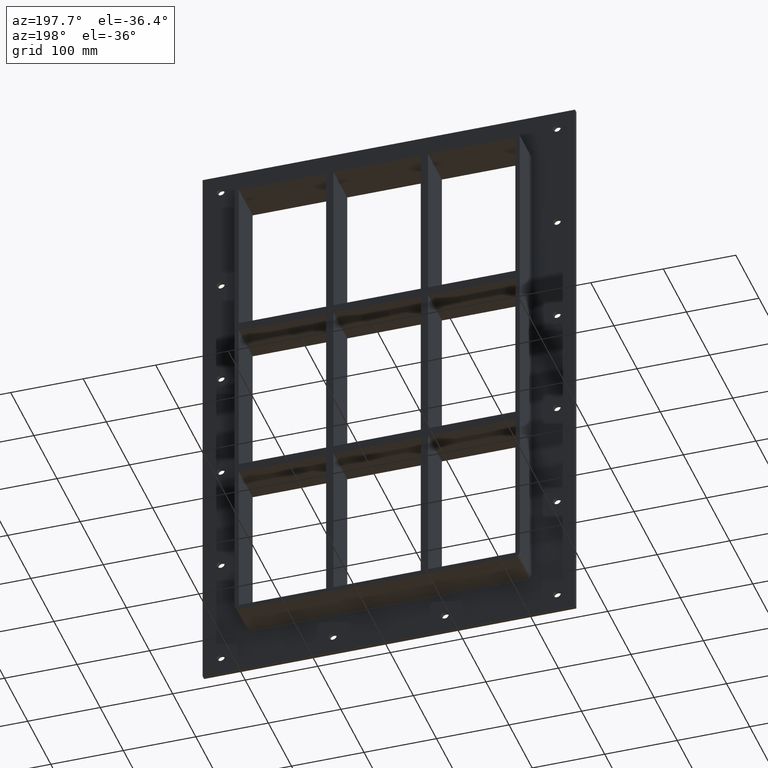
[diagram: clean part render]
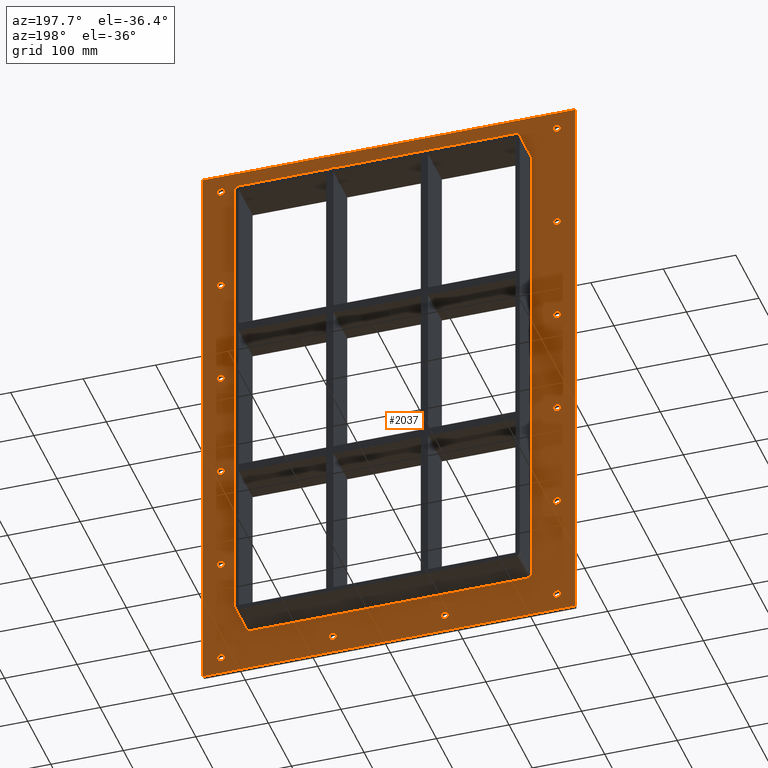
[diagram: same view with one face highlighted and labeled with its STEP entity id]
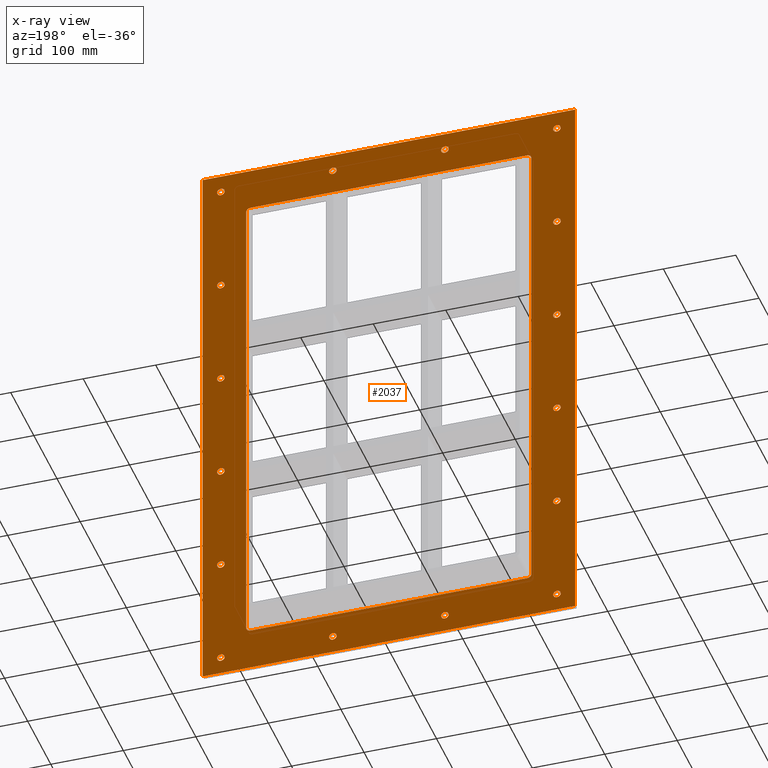
[diagram: x-ray of the same camera — body ghosted, the highlighted face saturated]
A machine part, auxiliary view. The second image highlights one B-rep face of the part: STEP entity #2037.
The next image is the same camera in x-ray: the body ghosted, the highlighted face saturated — about 0% of this face is hidden behind the body in this view.
In plain terms, the highlighted planar face has unit normal (0, 1, 0).
Its self-contained STEP definition (entity closure, byte-faithful):
#73=CARTESIAN_POINT('',(-237.0000000000002,5.999999999999943,-380.00000000000011));
#74=VERTEX_POINT('',#73);
#75=CARTESIAN_POINT('',(-231.75000000000023,5.999999999999943,-380.00000000000011));
#76=DIRECTION('',(0.0,-1.0,0.0));
#77=DIRECTION('',(1.0,0.0,0.0));
#78=AXIS2_PLACEMENT_3D('',#75,#76,#77);
#79=CIRCLE('',#78,5.25);
#80=EDGE_CURVE('',#74,#74,#79,.T.);
#101=CARTESIAN_POINT('',(226.4999999999998,5.999999999999943,-228.00000000000017));
#102=VERTEX_POINT('',#101);
#103=CARTESIAN_POINT('',(231.7499999999998,5.999999999999943,-228.00000000000017));
#104=DIRECTION('',(0.0,-1.0,0.0));
#105=DIRECTION('',(1.0,0.0,0.0));
#106=AXIS2_PLACEMENT_3D('',#103,#104,#105);
#107=CIRCLE('',#106,5.25);
#108=EDGE_CURVE('',#102,#102,#107,.T.);
#129=CARTESIAN_POINT('',(-237.0000000000002,5.999999999999943,-228.00000000000017));
#130=VERTEX_POINT('',#129);
#131=CARTESIAN_POINT('',(-231.75000000000023,5.999999999999943,-228.00000000000017));
#132=DIRECTION('',(0.0,-1.0,0.0));
#133=DIRECTION('',(1.0,0.0,0.0));
#134=AXIS2_PLACEMENT_3D('',#131,#132,#133);
#135=CIRCLE('',#134,5.25);
#136=EDGE_CURVE('',#130,#130,#135,.T.);
#157=CARTESIAN_POINT('',(226.4999999999998,5.999999999999943,-76.000000000000142));
#158=VERTEX_POINT('',#157);
#159=CARTESIAN_POINT('',(231.7499999999998,5.999999999999943,-76.000000000000142));
#160=DIRECTION('',(0.0,-1.0,0.0));
#161=DIRECTION('',(1.0,0.0,0.0));
#162=AXIS2_PLACEMENT_3D('',#159,#160,#161);
#163=CIRCLE('',#162,5.25);
#164=EDGE_CURVE('',#158,#158,#163,.T.);
#185=CARTESIAN_POINT('',(-237.0000000000002,5.999999999999943,-76.000000000000142));
#186=VERTEX_POINT('',#185);
#187=CARTESIAN_POINT('',(-231.75000000000023,5.999999999999943,-76.000000000000142));
#188=DIRECTION('',(0.0,-1.0,0.0));
#189=DIRECTION('',(1.0,0.0,0.0));
#190=AXIS2_PLACEMENT_3D('',#187,#188,#189);
#191=CIRCLE('',#190,5.25);
#192=EDGE_CURVE('',#186,#186,#191,.T.);
#213=CARTESIAN_POINT('',(226.4999999999998,5.999999999999943,75.999999999999815));
#214=VERTEX_POINT('',#213);
#215=CARTESIAN_POINT('',(231.7499999999998,5.999999999999943,75.999999999999815));
#216=DIRECTION('',(0.0,-1.0,0.0));
#217=DIRECTION('',(1.0,0.0,0.0));
#218=AXIS2_PLACEMENT_3D('',#215,#216,#217);
#219=CIRCLE('',#218,5.25);
#220=EDGE_CURVE('',#214,#214,#219,.T.);
#241=CARTESIAN_POINT('',(-237.0000000000002,5.999999999999943,75.999999999999815));
#242=VERTEX_POINT('',#241);
#243=CARTESIAN_POINT('',(-231.75000000000023,5.999999999999943,75.999999999999815));
#244=DIRECTION('',(0.0,-1.0,0.0));
#245=DIRECTION('',(1.0,0.0,0.0));
#246=AXIS2_PLACEMENT_3D('',#243,#244,#245);
#247=CIRCLE('',#246,5.25);
#248=EDGE_CURVE('',#242,#242,#247,.T.);
#269=CARTESIAN_POINT('',(226.4999999999998,5.999999999999943,227.99999999999983));
#270=VERTEX_POINT('',#269);
#271=CARTESIAN_POINT('',(231.7499999999998,5.999999999999943,227.99999999999983));
#272=DIRECTION('',(0.0,-1.0,0.0));
#273=DIRECTION('',(1.0,0.0,0.0));
#274=AXIS2_PLACEMENT_3D('',#271,#272,#273);
#275=CIRCLE('',#274,5.25);
#276=EDGE_CURVE('',#270,#270,#275,.T.);
#297=CARTESIAN_POINT('',(-237.0000000000002,5.999999999999943,227.99999999999983));
#298=VERTEX_POINT('',#297);
#299=CARTESIAN_POINT('',(-231.75000000000023,5.999999999999943,227.99999999999983));
#300=DIRECTION('',(0.0,-1.0,0.0));
#301=DIRECTION('',(1.0,0.0,0.0));
#302=AXIS2_PLACEMENT_3D('',#299,#300,#301);
#303=CIRCLE('',#302,5.25);
#304=EDGE_CURVE('',#298,#298,#303,.T.);
#325=CARTESIAN_POINT('',(-82.500000000000213,5.999999999999943,379.99999999999989));
#326=VERTEX_POINT('',#325);
#327=CARTESIAN_POINT('',(-77.250000000000227,5.999999999999943,379.99999999999989));
#328=DIRECTION('',(0.0,-1.0,0.0));
#329=DIRECTION('',(1.0,0.0,0.0));
#330=AXIS2_PLACEMENT_3D('',#327,#328,#329);
#331=CIRCLE('',#330,5.25);
#332=EDGE_CURVE('',#326,#326,#331,.T.);
#353=CARTESIAN_POINT('',(-82.500000000000213,5.999999999999943,-380.00000000000011));
#354=VERTEX_POINT('',#353);
#355=CARTESIAN_POINT('',(-77.250000000000227,5.999999999999943,-380.00000000000011));
#356=DIRECTION('',(0.0,-1.0,0.0));
#357=DIRECTION('',(1.0,0.0,0.0));
#358=AXIS2_PLACEMENT_3D('',#355,#356,#357);
#359=CIRCLE('',#358,5.25);
#360=EDGE_CURVE('',#354,#354,#359,.T.);
#381=CARTESIAN_POINT('',(71.999999999999801,5.999999999999943,379.99999999999989));
#382=VERTEX_POINT('',#381);
#383=CARTESIAN_POINT('',(77.249999999999787,5.999999999999943,379.99999999999989));
#384=DIRECTION('',(0.0,-1.0,0.0));
#385=DIRECTION('',(1.0,0.0,0.0));
#386=AXIS2_PLACEMENT_3D('',#383,#384,#385);
#387=CIRCLE('',#386,5.25);
#388=EDGE_CURVE('',#382,#382,#387,.T.);
#409=CARTESIAN_POINT('',(71.999999999999801,5.999999999999943,-380.00000000000011));
#410=VERTEX_POINT('',#409);
#411=CARTESIAN_POINT('',(77.249999999999787,5.999999999999943,-380.00000000000011));
#412=DIRECTION('',(0.0,-1.0,0.0));
#413=DIRECTION('',(1.0,0.0,0.0));
#414=AXIS2_PLACEMENT_3D('',#411,#412,#413);
#415=CIRCLE('',#414,5.25);
#416=EDGE_CURVE('',#410,#410,#415,.T.);
#437=CARTESIAN_POINT('',(226.4999999999998,5.999999999999943,-380.00000000000011));
#438=VERTEX_POINT('',#437);
#439=CARTESIAN_POINT('',(231.7499999999998,5.999999999999943,-380.00000000000011));
#440=DIRECTION('',(0.0,-1.0,0.0));
#441=DIRECTION('',(1.0,0.0,0.0));
#442=AXIS2_PLACEMENT_3D('',#439,#440,#441);
#443=CIRCLE('',#442,5.25);
#444=EDGE_CURVE('',#438,#438,#443,.T.);
#465=CARTESIAN_POINT('',(-237.0000000000002,5.999999999999943,379.99999999999989));
#466=VERTEX_POINT('',#465);
#467=CARTESIAN_POINT('',(-231.75000000000023,5.999999999999943,379.99999999999989));
#468=DIRECTION('',(0.0,-1.0,0.0));
#469=DIRECTION('',(1.0,0.0,0.0));
#470=AXIS2_PLACEMENT_3D('',#467,#468,#469);
#471=CIRCLE('',#470,5.25);
#472=EDGE_CURVE('',#466,#466,#471,.T.);
#493=CARTESIAN_POINT('',(226.4999999999998,5.999999999999943,379.99999999999989));
#494=VERTEX_POINT('',#493);
#495=CARTESIAN_POINT('',(231.7499999999998,5.999999999999943,379.99999999999989));
#496=DIRECTION('',(0.0,-1.0,0.0));
#497=DIRECTION('',(1.0,0.0,0.0));
#498=AXIS2_PLACEMENT_3D('',#495,#496,#497);
#499=CIRCLE('',#498,5.25);
#500=EDGE_CURVE('',#494,#494,#499,.T.);
#1880=CARTESIAN_POINT('',(1.288479E-014,6.000000000000001,-3.865438E-014));
#1881=DIRECTION('',(0.0,1.0,0.0));
#1882=DIRECTION('',(0.0,0.0,1.0));
#1883=AXIS2_PLACEMENT_3D('',#1880,#1881,#1882);
#1884=PLANE('',#1883);
#1885=CARTESIAN_POINT('',(-256.75000000000006,6.000000000000001,405.00000000000006));
#1886=VERTEX_POINT('',#1885);
#1887=CARTESIAN_POINT('',(256.75000000000017,6.000000000000001,405.00000000000006));
#1888=VERTEX_POINT('',#1887);
#1889=CARTESIAN_POINT('',(-256.75000000000006,6.000000000000001,405.00000000000006));
#1890=DIRECTION('',(1.0,0.0,0.0));
#1891=VECTOR('',#1890,513.50000000000023);
#1892=LINE('',#1889,#1891);
#1893=EDGE_CURVE('',#1886,#1888,#1892,.T.);
#1894=ORIENTED_EDGE('',*,*,#1893,.T.);
#1895=CARTESIAN_POINT('',(256.75000000000017,6.000000000000001,-405.00000000000023));
#1896=VERTEX_POINT('',#1895);
#1897=CARTESIAN_POINT('',(256.75000000000011,6.000000000000001,405.00000000000006));
#1898=DIRECTION('',(0.0,0.0,-1.0));
#1899=VECTOR('',#1898,810.00000000000023);
#1900=LINE('',#1897,#1899);
#1901=EDGE_CURVE('',#1888,#1896,#1900,.T.);
#1902=ORIENTED_EDGE('',*,*,#1901,.T.);
#1903=CARTESIAN_POINT('',(-256.75000000000006,6.000000000000001,-405.00000000000023));
#1904=VERTEX_POINT('',#1903);
#1905=CARTESIAN_POINT('',(256.75000000000011,6.000000000000001,-405.00000000000011));
#1906=DIRECTION('',(-1.0,0.0,0.0));
#1907=VECTOR('',#1906,513.50000000000023);
#1908=LINE('',#1905,#1907);
#1909=EDGE_CURVE('',#1896,#1904,#1908,.T.);
#1910=ORIENTED_EDGE('',*,*,#1909,.T.);
#1911=CARTESIAN_POINT('',(-256.75000000000006,6.000000000000001,-405.00000000000011));
#1912=DIRECTION('',(0.0,0.0,1.0));
#1913=VECTOR('',#1912,810.00000000000023);
#1914=LINE('',#1911,#1913);
#1915=EDGE_CURVE('',#1904,#1886,#1914,.T.);
#1916=ORIENTED_EDGE('',*,*,#1915,.T.);
#1917=EDGE_LOOP('',(#1894,#1902,#1910,#1916));
#1918=FACE_OUTER_BOUND('',#1917,.T.);
#1919=ORIENTED_EDGE('',*,*,#80,.T.);
#1920=EDGE_LOOP('',(#1919));
#1921=FACE_BOUND('',#1920,.T.);
#1922=ORIENTED_EDGE('',*,*,#108,.T.);
#1923=EDGE_LOOP('',(#1922));
#1924=FACE_BOUND('',#1923,.T.);
#1925=ORIENTED_EDGE('',*,*,#136,.T.);
#1926=EDGE_LOOP('',(#1925));
#1927=FACE_BOUND('',#1926,.T.);
#1928=ORIENTED_EDGE('',*,*,#164,.T.);
#1929=EDGE_LOOP('',(#1928));
#1930=FACE_BOUND('',#1929,.T.);
#1931=ORIENTED_EDGE('',*,*,#192,.T.);
#1932=EDGE_LOOP('',(#1931));
#1933=FACE_BOUND('',#1932,.T.);
#1934=ORIENTED_EDGE('',*,*,#220,.T.);
#1935=EDGE_LOOP('',(#1934));
#1936=FACE_BOUND('',#1935,.T.);
#1937=ORIENTED_EDGE('',*,*,#248,.T.);
#1938=EDGE_LOOP('',(#1937));
#1939=FACE_BOUND('',#1938,.T.);
#1940=ORIENTED_EDGE('',*,*,#276,.T.);
#1941=EDGE_LOOP('',(#1940));
#1942=FACE_BOUND('',#1941,.T.);
#1943=ORIENTED_EDGE('',*,*,#304,.T.);
#1944=EDGE_LOOP('',(#1943));
#1945=FACE_BOUND('',#1944,.T.);
#1946=ORIENTED_EDGE('',*,*,#332,.T.);
#1947=EDGE_LOOP('',(#1946));
#1948=FACE_BOUND('',#1947,.T.);
#1949=ORIENTED_EDGE('',*,*,#360,.T.);
#1950=EDGE_LOOP('',(#1949));
#1951=FACE_BOUND('',#1950,.T.);
#1952=ORIENTED_EDGE('',*,*,#388,.T.);
#1953=EDGE_LOOP('',(#1952));
#1954=FACE_BOUND('',#1953,.T.);
#1955=ORIENTED_EDGE('',*,*,#416,.T.);
#1956=EDGE_LOOP('',(#1955));
#1957=FACE_BOUND('',#1956,.T.);
#1958=ORIENTED_EDGE('',*,*,#444,.T.);
#1959=EDGE_LOOP('',(#1958));
#1960=FACE_BOUND('',#1959,.T.);
#1961=ORIENTED_EDGE('',*,*,#472,.T.);
#1962=EDGE_LOOP('',(#1961));
#1963=FACE_BOUND('',#1962,.T.);
#1964=ORIENTED_EDGE('',*,*,#500,.T.);
#1965=EDGE_LOOP('',(#1964));
#1966=FACE_BOUND('',#1965,.T.);
#1967=CARTESIAN_POINT('',(-190.75000000000003,6.000000000000001,-345.00000000000006));
#1968=VERTEX_POINT('',#1967);
#1969=CARTESIAN_POINT('',(-196.75000000000006,6.000000000000001,-339.00000000000006));
#1970=VERTEX_POINT('',#1969);
#1971=CARTESIAN_POINT('',(-190.75000000000003,6.000000000000001,-339.00000000000006));
#1972=DIRECTION('',(0.0,1.0,0.0));
#1973=DIRECTION('',(-0.707106781186552,0.0,-0.707106781186543));
#1974=AXIS2_PLACEMENT_3D('',#1971,#1972,#1973);
#1975=CIRCLE('',#1974,6.000000000000001);
#1976=EDGE_CURVE('',#1968,#1970,#1975,.T.);
#1977=ORIENTED_EDGE('',*,*,#1976,.F.);
#1978=CARTESIAN_POINT('',(190.75000000000003,6.000000000000001,-345.00000000000006));
#1979=VERTEX_POINT('',#1978);
#1980=CARTESIAN_POINT('',(190.75000000000003,6.000000000000001,-345.00000000000006));
#1981=DIRECTION('',(-1.0,0.0,0.0));
#1982=VECTOR('',#1981,381.50000000000006);
#1983=LINE('',#1980,#1982);
#1984=EDGE_CURVE('',#1979,#1968,#1983,.T.);
#1985=ORIENTED_EDGE('',*,*,#1984,.F.);
#1986=CARTESIAN_POINT('',(196.75000000000006,6.000000000000001,-339.00000000000006));
#1987=VERTEX_POINT('',#1986);
#1988=CARTESIAN_POINT('',(190.75000000000003,6.000000000000001,-339.00000000000006));
#1989=DIRECTION('',(0.0,1.0,0.0));
#1990=DIRECTION('',(0.707106781186552,0.0,-0.707106781186543));
#1991=AXIS2_PLACEMENT_3D('',#1988,#1989,#1990);
#1992=CIRCLE('',#1991,6.000000000000001);
#1993=EDGE_CURVE('',#1987,#1979,#1992,.T.);
#1994=ORIENTED_EDGE('',*,*,#1993,.F.);
#1995=CARTESIAN_POINT('',(196.75000000000006,6.000000000000001,339.00000000000006));
#1996=VERTEX_POINT('',#1995);
#1997=CARTESIAN_POINT('',(196.75000000000006,6.000000000000001,339.00000000000006));
#1998=DIRECTION('',(0.0,0.0,-1.0));
#1999=VECTOR('',#1998,678.00000000000011);
#2000=LINE('',#1997,#1999);
#2001=EDGE_CURVE('',#1996,#1987,#2000,.T.);
#2002=ORIENTED_EDGE('',*,*,#2001,.F.);
#2003=CARTESIAN_POINT('',(190.75000000000003,6.000000000000001,345.00000000000006));
#2004=VERTEX_POINT('',#2003);
#2005=CARTESIAN_POINT('',(190.75000000000003,6.000000000000001,339.00000000000006));
#2006=DIRECTION('',(0.0,1.0,0.0));
#2007=DIRECTION('',(0.707106781186552,0.0,0.707106781186543));
#2008=AXIS2_PLACEMENT_3D('',#2005,#2006,#2007);
#2009=CIRCLE('',#2008,6.000000000000001);
#2010=EDGE_CURVE('',#2004,#1996,#2009,.T.);
#2011=ORIENTED_EDGE('',*,*,#2010,.F.);
#2012=CARTESIAN_POINT('',(-190.75000000000003,6.000000000000001,345.00000000000006));
#2013=VERTEX_POINT('',#2012);
#2014=CARTESIAN_POINT('',(-190.75000000000003,6.000000000000001,345.00000000000006));
#2015=DIRECTION('',(1.0,0.0,0.0));
#2016=VECTOR('',#2015,381.50000000000006);
#2017=LINE('',#2014,#2016);
#2018=EDGE_CURVE('',#2013,#2004,#2017,.T.);
#2019=ORIENTED_EDGE('',*,*,#2018,.F.);
#2020=CARTESIAN_POINT('',(-196.75000000000006,6.000000000000001,339.00000000000006));
#2021=VERTEX_POINT('',#2020);
#2022=CARTESIAN_POINT('',(-190.75000000000003,6.000000000000001,339.00000000000006));
#2023=DIRECTION('',(0.0,1.0,0.0));
#2024=DIRECTION('',(-0.707106781186552,0.0,0.707106781186543));
#2025=AXIS2_PLACEMENT_3D('',#2022,#2023,#2024);
#2026=CIRCLE('',#2025,6.000000000000001);
#2027=EDGE_CURVE('',#2021,#2013,#2026,.T.);
#2028=ORIENTED_EDGE('',*,*,#2027,.F.);
#2029=CARTESIAN_POINT('',(-196.75000000000006,6.000000000000001,-339.00000000000006));
#2030=DIRECTION('',(0.0,0.0,1.0));
#2031=VECTOR('',#2030,678.00000000000011);
#2032=LINE('',#2029,#2031);
#2033=EDGE_CURVE('',#1970,#2021,#2032,.T.);
#2034=ORIENTED_EDGE('',*,*,#2033,.F.);
#2035=EDGE_LOOP('',(#1977,#1985,#1994,#2002,#2011,#2019,#2028,#2034));
#2036=FACE_BOUND('',#2035,.T.);
#2037=ADVANCED_FACE('',(#1918,#1921,#1924,#1927,#1930,#1933,#1936,#1939,#1942,#1945,#1948,#1951,#1954,#1957,#1960,#1963,#1966,#2036),#1884,.T.);